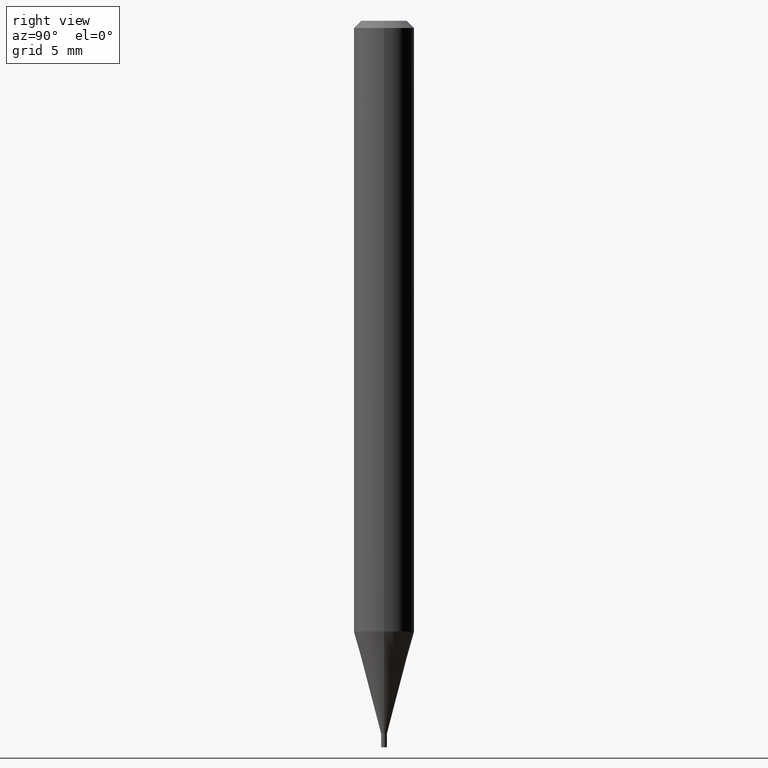
[diagram: clean part render]
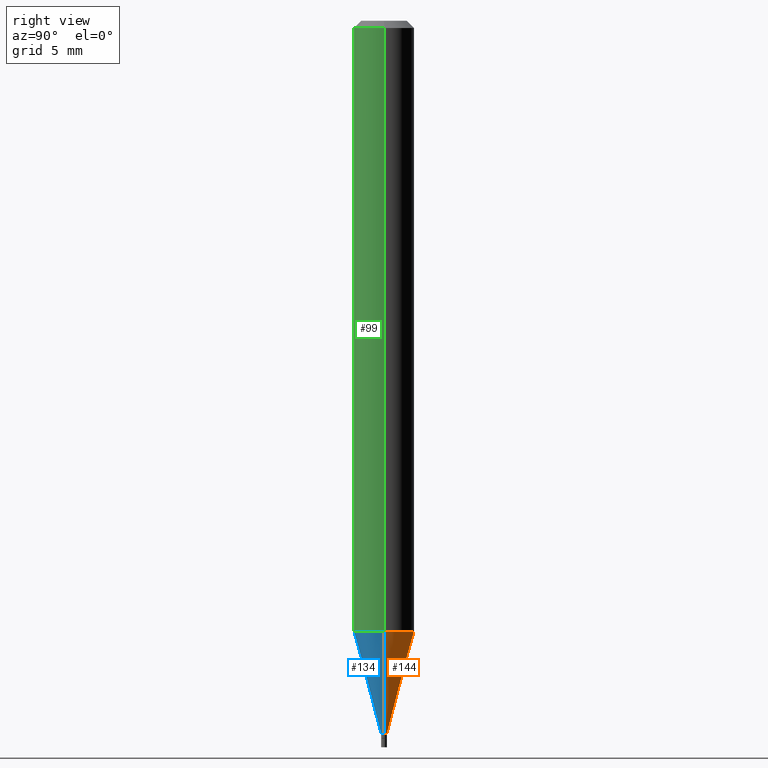
[diagram: same view with three faces highlighted in distinct colors, each labeled with its STEP entity id]
A machine part, right view with three faces highlighted in distinct colors.
Their STEP definitions:

[orange] entity #144 — the highlighted conical surface has half-angle 15 deg.
#7 = CARTESIAN_POINT ( 'NONE',  ( 0.005999999999999918593, -5.181358306843227696E-15, -1.471999999999999975 ) ) ;
#21 = DIRECTION ( 'NONE',  ( 0.2588190451025215721, 1.565188264969619995E-15, 0.9659258262890679791 ) ) ;
#48 = LINE ( 'NONE', #449, #96 ) ;
#50 = EDGE_CURVE ( 'NONE', #89, #387, #323, .T. ) ;
#54 = FACE_OUTER_BOUND ( 'NONE', #366, .T. ) ;
#57 = CONICAL_SURFACE ( 'NONE', #237, 0.005999999999999918593, 0.2617993877991502960 ) ;
#88 = DIRECTION ( 'NONE',  ( -2.445468806185136597E-29, 3.491481338843145583E-15, 1.000000000000000000 ) ) ;
#89 = VERTEX_POINT ( 'NONE', #141 ) ;
#92 = CARTESIAN_POINT ( 'NONE',  ( 3.599730082704520905E-29, -5.139460530777110821E-15, -1.471999999999999975 ) ) ;
#96 = VECTOR ( 'NONE', #21, 39.37007874015748143 ) ;
#101 = VECTOR ( 'NONE', #362, 39.37007874015748143 ) ;
#106 = AXIS2_PLACEMENT_3D ( 'NONE', #303, #151, #447 ) ;
#110 = CIRCLE ( 'NONE', #177, 0.005999999999999918593 ) ;
#112 = DIRECTION ( 'NONE',  ( 1.000000000000000000, -6.982962677686265922E-15, 0.000000000000000000 ) ) ;
#122 = DIRECTION ( 'NONE',  ( -2.445468806185136597E-29, 3.491481338843145583E-15, 1.000000000000000000 ) ) ;
#131 = CIRCLE ( 'NONE', #106, 0.06250000000000000000 ) ;
#140 = CARTESIAN_POINT ( 'NONE',  ( -0.005999999999999918593, -5.096827966631505561E-15, -1.471999999999999975 ) ) ;
#141 = CARTESIAN_POINT ( 'NONE',  ( -0.005999999999999918593, -4.527991246334962700E-15, -1.471999999999999975 ) ) ;
#144 = ADVANCED_FACE ( 'NONE', ( #54 ), #57, .T. ) ;
#150 = EDGE_CURVE ( 'NONE', #190, #89, #110, .T. ) ;
#151 = DIRECTION ( 'NONE',  ( -2.445468806185136597E-29, 3.491481338843145583E-15, 1.000000000000000000 ) ) ;
#177 = AXIS2_PLACEMENT_3D ( 'NONE', #219, #88, #301 ) ;
#190 = VERTEX_POINT ( 'NONE', #7 ) ;
#196 = CARTESIAN_POINT ( 'NONE',  ( -0.06250000000000000000, -3.959154526038420628E-15, -1.261139129372358836 ) ) ;
#205 = EDGE_CURVE ( 'NONE', #354, #387, #131, .T. ) ;
#219 = CARTESIAN_POINT ( 'NONE',  ( 3.599730082704520905E-29, -5.139460530777110821E-15, -1.471999999999999975 ) ) ;
#237 = AXIS2_PLACEMENT_3D ( 'NONE', #92, #122, #112 ) ;
#301 = DIRECTION ( 'NONE',  ( 1.000000000000000000, -6.982962677686265922E-15, 0.000000000000000000 ) ) ;
#303 = CARTESIAN_POINT ( 'NONE',  ( 3.084076401139584811E-29, -4.403243735888483244E-15, -1.261139129372358836 ) ) ;
#315 = ORIENTED_EDGE ( 'NONE', *, *, #205, .F. ) ;
#323 = LINE ( 'NONE', #140, #101 ) ;
#333 = ORIENTED_EDGE ( 'NONE', *, *, #50, .T. ) ;
#348 = ORIENTED_EDGE ( 'NONE', *, *, #456, .F. ) ;
#354 = VERTEX_POINT ( 'NONE', #452 ) ;
#362 = DIRECTION ( 'NONE',  ( -0.2588190451025215721, 5.211531920934551831E-15, 0.9659258262890679791 ) ) ;
#366 = EDGE_LOOP ( 'NONE', ( #420, #333, #315, #348 ) ) ;
#387 = VERTEX_POINT ( 'NONE', #196 ) ;
#420 = ORIENTED_EDGE ( 'NONE', *, *, #150, .T. ) ;
#447 = DIRECTION ( 'NONE',  ( 1.000000000000000000, -6.982962677686262766E-15, 0.000000000000000000 ) ) ;
#449 = CARTESIAN_POINT ( 'NONE',  ( 0.005999999999999918593, -5.181358306843227696E-15, -1.471999999999999975 ) ) ;
#452 = CARTESIAN_POINT ( 'NONE',  ( 0.06250000000000000000, -4.839678903243874125E-15, -1.261139129372358836 ) ) ;
#456 = EDGE_CURVE ( 'NONE', #190, #354, #48, .T. ) ;

[blue] entity #134 — the highlighted conical surface has half-angle 15 deg.
#7 = CARTESIAN_POINT ( 'NONE',  ( 0.005999999999999918593, -5.181358306843227696E-15, -1.471999999999999975 ) ) ;
#21 = DIRECTION ( 'NONE',  ( 0.2588190451025215721, 1.565188264969619995E-15, 0.9659258262890679791 ) ) ;
#23 = ORIENTED_EDGE ( 'NONE', *, *, #50, .F. ) ;
#31 = ORIENTED_EDGE ( 'NONE', *, *, #396, .F. ) ;
#48 = LINE ( 'NONE', #449, #96 ) ;
#50 = EDGE_CURVE ( 'NONE', #89, #387, #323, .T. ) ;
#61 = ORIENTED_EDGE ( 'NONE', *, *, #265, .T. ) ;
#63 = ORIENTED_EDGE ( 'NONE', *, *, #456, .T. ) ;
#85 = AXIS2_PLACEMENT_3D ( 'NONE', #374, #194, #338 ) ;
#89 = VERTEX_POINT ( 'NONE', #141 ) ;
#96 = VECTOR ( 'NONE', #21, 39.37007874015748143 ) ;
#101 = VECTOR ( 'NONE', #362, 39.37007874015748143 ) ;
#116 = DIRECTION ( 'NONE',  ( -2.445468806185136597E-29, 3.491481338843145583E-15, 1.000000000000000000 ) ) ;
#124 = DIRECTION ( 'NONE',  ( 1.000000000000000000, -6.982962677686262766E-15, 0.000000000000000000 ) ) ;
#134 = ADVANCED_FACE ( 'NONE', ( #434 ), #369, .T. ) ;
#140 = CARTESIAN_POINT ( 'NONE',  ( -0.005999999999999918593, -5.096827966631505561E-15, -1.471999999999999975 ) ) ;
#141 = CARTESIAN_POINT ( 'NONE',  ( -0.005999999999999918593, -4.527991246334962700E-15, -1.471999999999999975 ) ) ;
#143 = AXIS2_PLACEMENT_3D ( 'NONE', #329, #116, #124 ) ;
#187 = DIRECTION ( 'NONE',  ( 1.000000000000000000, -6.982962677686265922E-15, 0.000000000000000000 ) ) ;
#190 = VERTEX_POINT ( 'NONE', #7 ) ;
#194 = DIRECTION ( 'NONE',  ( -2.445468806185136597E-29, 3.491481338843145583E-15, 1.000000000000000000 ) ) ;
#196 = CARTESIAN_POINT ( 'NONE',  ( -0.06250000000000000000, -3.959154526038420628E-15, -1.261139129372358836 ) ) ;
#265 = EDGE_CURVE ( 'NONE', #89, #190, #436, .T. ) ;
#267 = EDGE_LOOP ( 'NONE', ( #23, #61, #63, #31 ) ) ;
#293 = CARTESIAN_POINT ( 'NONE',  ( 3.599730082704520905E-29, -5.139460530777110821E-15, -1.471999999999999975 ) ) ;
#320 = CIRCLE ( 'NONE', #143, 0.06250000000000000000 ) ;
#323 = LINE ( 'NONE', #140, #101 ) ;
#329 = CARTESIAN_POINT ( 'NONE',  ( 3.084076401139584811E-29, -4.403243735888483244E-15, -1.261139129372358836 ) ) ;
#338 = DIRECTION ( 'NONE',  ( 1.000000000000000000, -6.982962677686265922E-15, 0.000000000000000000 ) ) ;
#354 = VERTEX_POINT ( 'NONE', #452 ) ;
#362 = DIRECTION ( 'NONE',  ( -0.2588190451025215721, 5.211531920934551831E-15, 0.9659258262890679791 ) ) ;
#369 = CONICAL_SURFACE ( 'NONE', #389, 0.005999999999999918593, 0.2617993877991502960 ) ;
#374 = CARTESIAN_POINT ( 'NONE',  ( 3.599730082704520905E-29, -5.139460530777110821E-15, -1.471999999999999975 ) ) ;
#387 = VERTEX_POINT ( 'NONE', #196 ) ;
#389 = AXIS2_PLACEMENT_3D ( 'NONE', #293, #433, #187 ) ;
#396 = EDGE_CURVE ( 'NONE', #387, #354, #320, .T. ) ;
#433 = DIRECTION ( 'NONE',  ( -2.445468806185136597E-29, 3.491481338843145583E-15, 1.000000000000000000 ) ) ;
#434 = FACE_OUTER_BOUND ( 'NONE', #267, .T. ) ;
#436 = CIRCLE ( 'NONE', #85, 0.005999999999999918593 ) ;
#449 = CARTESIAN_POINT ( 'NONE',  ( 0.005999999999999918593, -5.181358306843227696E-15, -1.471999999999999975 ) ) ;
#452 = CARTESIAN_POINT ( 'NONE',  ( 0.06250000000000000000, -4.839678903243874125E-15, -1.261139129372358836 ) ) ;
#456 = EDGE_CURVE ( 'NONE', #190, #354, #48, .T. ) ;

[green] entity #99 — the highlighted cylindrical surface (edge-blend (fillet) strip) has radius 1.5875 mm, axis along (-0, 0, 1).
#13 = DIRECTION ( 'NONE',  ( -2.445468806185136877E-29, 3.491481338843145188E-15, 1.000000000000000000 ) ) ;
#51 = DIRECTION ( 'NONE',  ( -2.445468806185136597E-29, 3.491481338843145583E-15, 1.000000000000000000 ) ) ;
#58 = VECTOR ( 'NONE', #13, 39.37007874015748143 ) ;
#59 = CARTESIAN_POINT ( 'NONE',  ( -0.06250000000000000000, -1.783718768135502348E-15, -0.01499999999999999944 ) ) ;
#86 = CARTESIAN_POINT ( 'NONE',  ( 0.06250000000000000000, -4.888073874380388472E-16, -0.01499999999999999944 ) ) ;
#99 = ADVANCED_FACE ( 'NONE', ( #395 ), #294, .T. ) ;
#116 = DIRECTION ( 'NONE',  ( -2.445468806185136597E-29, 3.491481338843145583E-15, 1.000000000000000000 ) ) ;
#124 = DIRECTION ( 'NONE',  ( 1.000000000000000000, -6.982962677686262766E-15, 0.000000000000000000 ) ) ;
#136 = ORIENTED_EDGE ( 'NONE', *, *, #393, .F. ) ;
#138 = AXIS2_PLACEMENT_3D ( 'NONE', #358, #181, #182 ) ;
#142 = CIRCLE ( 'NONE', #206, 0.06250000000000000000 ) ;
#143 = AXIS2_PLACEMENT_3D ( 'NONE', #329, #116, #124 ) ;
#155 = VERTEX_POINT ( 'NONE', #59 ) ;
#181 = DIRECTION ( 'NONE',  ( -2.445468806185136597E-29, 3.491481338843145583E-15, 1.000000000000000000 ) ) ;
#182 = DIRECTION ( 'NONE',  ( 1.000000000000000000, -6.982962677686266711E-15, 4.876176775795935793E-29 ) ) ;
#189 = DIRECTION ( 'NONE',  ( 1.000000000000000000, -6.982962677686266711E-15, 0.000000000000000000 ) ) ;
#191 = CARTESIAN_POINT ( 'NONE',  ( 0.06250000000000000000, -4.364351673553916694E-16, 3.047610484872459871E-30 ) ) ;
#196 = CARTESIAN_POINT ( 'NONE',  ( -0.06250000000000000000, -3.959154526038420628E-15, -1.261139129372358836 ) ) ;
#206 = AXIS2_PLACEMENT_3D ( 'NONE', #406, #51, #189 ) ;
#218 = LINE ( 'NONE', #300, #58 ) ;
#226 = EDGE_CURVE ( 'NONE', #155, #248, #142, .T. ) ;
#229 = DIRECTION ( 'NONE',  ( -2.445468806185136877E-29, 3.491481338843145188E-15, 1.000000000000000000 ) ) ;
#248 = VERTEX_POINT ( 'NONE', #86 ) ;
#264 = ORIENTED_EDGE ( 'NONE', *, *, #396, .T. ) ;
#294 = CYLINDRICAL_SURFACE ( 'NONE', #138, 0.06250000000000000000 ) ;
#300 = CARTESIAN_POINT ( 'NONE',  ( -0.06250000000000000000, 4.440892098500626162E-16, -3.074334431409316114E-30 ) ) ;
#311 = EDGE_LOOP ( 'NONE', ( #136, #264, #451, #360 ) ) ;
#320 = CIRCLE ( 'NONE', #143, 0.06250000000000000000 ) ;
#321 = EDGE_CURVE ( 'NONE', #354, #248, #409, .T. ) ;
#329 = CARTESIAN_POINT ( 'NONE',  ( 3.084076401139584811E-29, -4.403243735888483244E-15, -1.261139129372358836 ) ) ;
#354 = VERTEX_POINT ( 'NONE', #452 ) ;
#358 = CARTESIAN_POINT ( 'NONE',  ( 0.000000000000000000, 0.000000000000000000, 0.000000000000000000 ) ) ;
#360 = ORIENTED_EDGE ( 'NONE', *, *, #226, .F. ) ;
#382 = VECTOR ( 'NONE', #229, 39.37007874015748143 ) ;
#387 = VERTEX_POINT ( 'NONE', #196 ) ;
#393 = EDGE_CURVE ( 'NONE', #387, #155, #218, .T. ) ;
#395 = FACE_OUTER_BOUND ( 'NONE', #311, .T. ) ;
#396 = EDGE_CURVE ( 'NONE', #387, #354, #320, .T. ) ;
#406 = CARTESIAN_POINT ( 'NONE',  ( 3.668203209277705088E-31, -5.237222008264718399E-17, -0.01499999999999999944 ) ) ;
#409 = LINE ( 'NONE', #191, #382 ) ;
#451 = ORIENTED_EDGE ( 'NONE', *, *, #321, .T. ) ;
#452 = CARTESIAN_POINT ( 'NONE',  ( 0.06250000000000000000, -4.839678903243874125E-15, -1.261139129372358836 ) ) ;